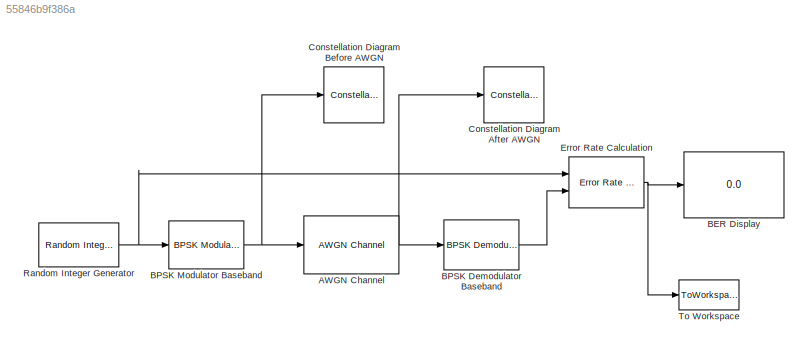
MODEL slx_55846b9f386a
KIND model
CONFIG AbsTol = auto
CONFIG FixedStep = auto
CONFIG MaxStep = auto
CONFIG MinStep = auto
CONFIG RelTol = 1e-3
CONFIG SampleTimeConstraint = Unconstrained
CONFIG Solver = ode45
CONFIG SolverMode = Auto
CONFIG SolverName = ode45
CONFIG StartTime = 0.0
CONFIG StopTime = 1000000.0
BLOCK [Reference] AWGN Channel  REF=commchan3/AWGN
Channel
  EbNodB = EbNo
  EsNodB = 10
  InputProcessing = Columns as channels (frame based)
  Ports = [1, 1]
  Ps = 1
  SNRdB = 10
  SourceBlock = commchan3/AWGN\nChannel
  SourceType = AWGN Channel
  Tsym = 1
  UserDataPersistent = on
  bitsPerSym = 1
  noiseMode = Signal to noise ratio  (Eb/No)
  seed = 67
  variance = 1
BLOCK [Display] BER Display
  Decimation = 1
  Ports = [1]
BLOCK [Reference] BPSK Demodulator Baseband  REF=commdigbbndpm3/BPSK
Demodulator
Baseband
  DecType = Hard decision
  Ph = 0
  Ports = [1, 1]
  SourceBlock = commdigbbndpm3/BPSK\nDemodulator\nBaseband
  SourceType = BPSK Demodulator Baseband
  VarSource = Dialog
  Variance = 1
  derotateFactorDTMode = Same word length as input
  derotateFactorWordLen = 16
  outDtype = Inherit via internal rule
BLOCK [Reference] BPSK Modulator Baseband  REF=commdigbbndpm3/BPSK
Modulator
Baseband
  Ph = 0
  Ports = [1, 1]
  SourceBlock = commdigbbndpm3/BPSK\nModulator\nBaseband
  SourceType = BPSK Modulator Baseband
  outDtype = double
  outFracLen = 15
  outFracLenMode = Best precision
  outUDDataType = sfix(16)
  outWordLen = 16
BLOCK [ConstellationDiagram] Constellation Diagram After AWGN
  Ports = [1]
  ScopeSpecificationString = comm.scopes.ConstellationDiagramBlockCfg('CurrentConfiguration', extmgr.ConfigurationSet(extmgr.Configuration('Core','General UI',true),extmgr.Configuration('Core','Source UI',true),extmgr.Configuration('Sources','WiredSimulink',true),extmgr.Configuration('Visuals','Constellation',true,'LineProperties',struct('DisplayName','','Color',[1 1 0.0666666666666667],'LineStyle','none','LineWidth',0.5,'Mar...<+942ch>
BLOCK [ConstellationDiagram] Constellation Diagram Before AWGN
  Ports = [1]
  ScopeSpecificationString = comm.scopes.ConstellationDiagramBlockCfg('CurrentConfiguration', extmgr.ConfigurationSet(extmgr.Configuration('Core','General UI',true),extmgr.Configuration('Core','Source UI',true),extmgr.Configuration('Sources','WiredSimulink',true),extmgr.Configuration('Visuals','Constellation',true,'LineProperties',struct('DisplayName','','Color',[1 1 0.0666666666666667],'LineStyle','none','LineWidth',0.5,'Mar...<+943ch>
BLOCK [Reference] Error Rate Calculation  REF=commsink2/Error Rate
Calculation
  N = 0
  PMode = Port
  Ports = [2, 1]
  RsMode2 = off
  SourceBlock = commsink2/Error Rate\nCalculation
  SourceType = Error Rate Calculation
  WsName = ErrorVec
  cp_mode = Entire frame
  maxBits = 1e6
  numErr = 100
  st_delay = 0
  stop = off
  subframe = []
BLOCK [Reference] Random Integer Generator  REF=commrandsrc2/Random Integer
Generator
  Ports = [0, 1]
  SourceBlock = commrandsrc2/Random Integer\nGenerator
  SourceType = Random Integer Generator
  Ts = 1
  frameBased = on
  mul = 2
  orient = off
  outDataType = double
  sampPerFrame = 100
  seed = 37
BLOCK [ToWorkspace] To Workspace
  FixptAsFi = on
  MaxDataPoints = 2
  Ports = [1]
  SampleTime = -1
  Save2DSignal = 2-D array (concatenate along first dimension)
  VariableName = ber
NET AWGN Channel:1 -> BPSK Demodulator Baseband:1, Constellation Diagram After AWGN:1
LINE BPSK Demodulator Baseband:1 -> Error Rate Calculation:2
NET BPSK Modulator Baseband:1 -> AWGN Channel:1, Constellation Diagram Before AWGN:1
NET Error Rate Calculation:1 -> BER Display:1, To Workspace:1
NET Random Integer Generator:1 -> BPSK Modulator Baseband:1, Error Rate Calculation:1
note: NET lines group one-source signal fan-out (src -> all destinations, sorted); 1:1 wires keep LINE
